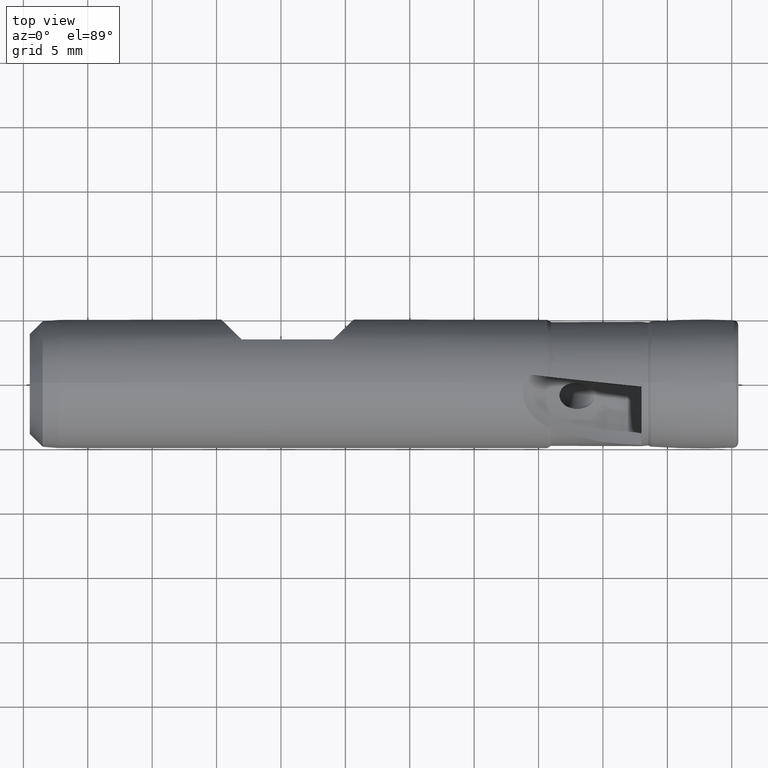
[diagram: clean part render]
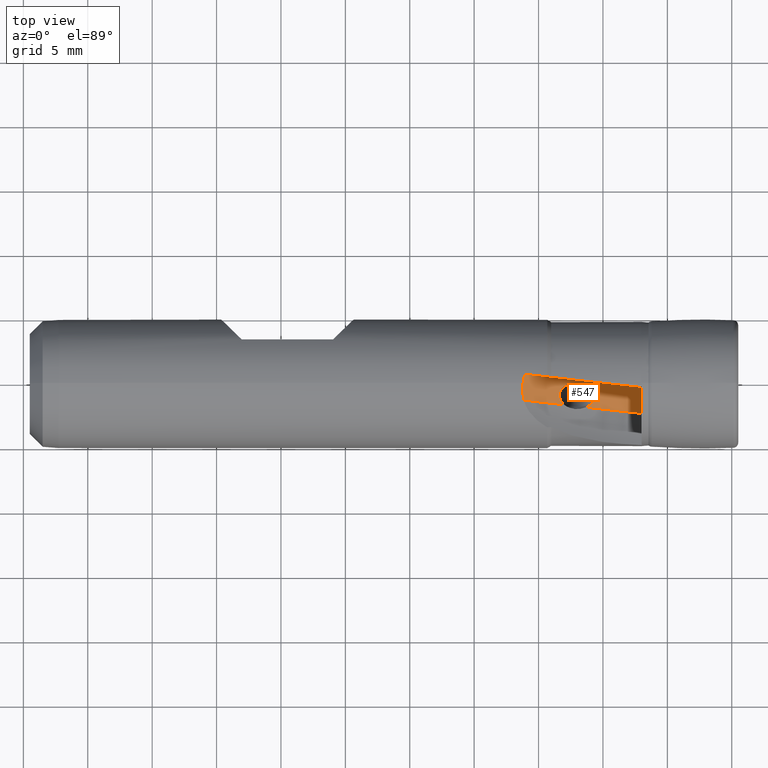
[diagram: same view with one face highlighted and labeled with its STEP entity id]
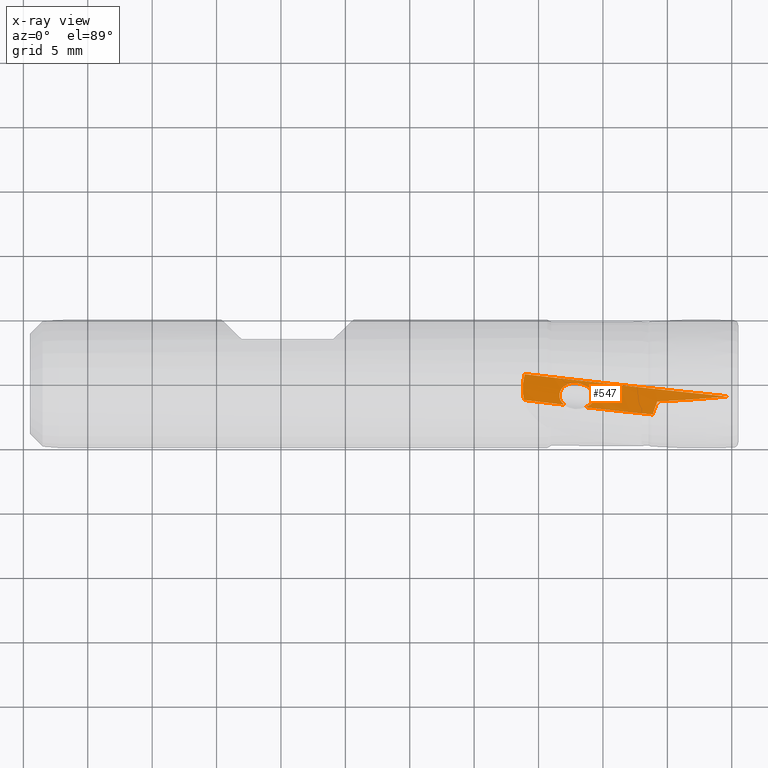
[diagram: x-ray of the same camera — body ghosted, the highlighted face saturated]
A machine part, top view. The second image highlights one B-rep face of the part: STEP entity #547.
The next image is the same camera in x-ray: the body ghosted, the highlighted face saturated — about 0% of this face is hidden behind the body in this view.
In plain terms, the highlighted cylindrical surface (partial cylindrical patch) has radius 20 mm, axis along (-0.1045, -0.9945, -0).
Its self-contained STEP definition (entity closure, byte-faithful):
#36 = EDGE_LOOP ( 'NONE', ( #876, #877, #878, #879, #880, #881, #882, #883, #884, #885, #886 ) ) ;
#76 = CARTESIAN_POINT ( 'NONE',  ( -13.01692695382451800, -1.658445768495479200, 2.649224183411278000 ) ) ;
#77 = CARTESIAN_POINT ( 'NONE',  ( -11.32752142599441600, -1.836009444551878400, 1.801208645231765700 ) ) ;
#113 = VERTEX_POINT ( 'NONE', #76 ) ;
#114 = VERTEX_POINT ( 'NONE', #77 ) ;
#139 = VERTEX_POINT ( 'NONE', #965 ) ;
#140 = VERTEX_POINT ( 'NONE', #966 ) ;
#141 = VERTEX_POINT ( 'NONE', #967 ) ;
#143 = VERTEX_POINT ( 'NONE', #969 ) ;
#163 = VERTEX_POINT ( 'NONE', #989 ) ;
#164 = VERTEX_POINT ( 'NONE', #990 ) ;
#179 = VERTEX_POINT ( 'NONE', #1005 ) ;
#219 = VERTEX_POINT ( 'NONE', #1045 ) ;
#221 = VERTEX_POINT ( 'NONE', #1047 ) ;
#326 = B_SPLINE_CURVE_WITH_KNOTS ( 'NONE', 3,
 ( #1383, #1382, #1390, #1391 ),
 .UNSPECIFIED., .F., .F.,
 ( 4, 4 ),
 ( 0.001346858515786729300, 0.002030196299819931200 ),
 .UNSPECIFIED. ) ;
#351 = EDGE_CURVE ( 'NONE', #163, #164, #326, .T. ) ;
#379 = EDGE_CURVE ( 'NONE', #179, #139, #617, .T. ) ;
#399 = EDGE_CURVE ( 'NONE', #164, #179, #1236, .T. ) ;
#446 = EDGE_CURVE ( 'NONE', #221, #163, #1175, .T. ) ;
#447 = EDGE_CURVE ( 'NONE', #221, #113, #1342, .T. ) ;
#448 = EDGE_CURVE ( 'NONE', #143, #141, #1179, .T. ) ;
#449 = EDGE_CURVE ( 'NONE', #114, #219, #1322, .T. ) ;
#450 = EDGE_CURVE ( 'NONE', #140, #219, #1178, .T. ) ;
#547 = ADVANCED_FACE ( 'NONE', ( #2172 ), #2171, .F. ) ;
#616 = EDGE_CURVE ( 'NONE', #141, #114, #821, .T. ) ;
#617 = B_SPLINE_CURVE_WITH_KNOTS ( 'NONE', 3,
 ( #1487, #1488, #1493, #1494 ),
 .UNSPECIFIED., .F., .F.,
 ( 4, 4 ),
 ( 1.626421921533377400E-005, 2.985576185148802800E-005 ),
 .UNSPECIFIED. ) ;
#653 = AXIS2_PLACEMENT_3D ( 'NONE', #2166, #2168, #2174 ) ;
#769 = EDGE_CURVE ( 'NONE', #113, #143, #820, .T. ) ;
#816 = EDGE_CURVE ( 'NONE', #139, #140, #2221, .T. ) ;
#820 = B_SPLINE_CURVE_WITH_KNOTS ( 'NONE', 3,
 ( #2208, #2228, #2229, #2230, #2231, #2232, #2233, #2234 ),
 .UNSPECIFIED., .F., .F.,
 ( 4, 2, 2, 4 ),
 ( 1.130519435695474000E-015, 0.0002324834957724966100, 0.0004649669915438626800, 0.0009299339830865969100 ),
 .UNSPECIFIED. ) ;
#821 = B_SPLINE_CURVE_WITH_KNOTS ( 'NONE', 3,
 ( #2193, #2199, #2209, #2210, #2211, #2212, #2064, #2227 ),
 .UNSPECIFIED., .F., .F.,
 ( 4, 2, 2, 4 ),
 ( 0.004912241234561748800, 0.005183248772095141000, 0.005454256309628533100, 0.005996271384695313900 ),
 .UNSPECIFIED. ) ;
#876 = ORIENTED_EDGE ( 'NONE', *, *, #816, .F. ) ;
#877 = ORIENTED_EDGE ( 'NONE', *, *, #379, .F. ) ;
#878 = ORIENTED_EDGE ( 'NONE', *, *, #399, .F. ) ;
#879 = ORIENTED_EDGE ( 'NONE', *, *, #351, .F. ) ;
#880 = ORIENTED_EDGE ( 'NONE', *, *, #446, .F. ) ;
#881 = ORIENTED_EDGE ( 'NONE', *, *, #447, .T. ) ;
#882 = ORIENTED_EDGE ( 'NONE', *, *, #769, .T. ) ;
#883 = ORIENTED_EDGE ( 'NONE', *, *, #448, .T. ) ;
#884 = ORIENTED_EDGE ( 'NONE', *, *, #616, .T. ) ;
#885 = ORIENTED_EDGE ( 'NONE', *, *, #449, .T. ) ;
#886 = ORIENTED_EDGE ( 'NONE', *, *, #450, .F. ) ;
#965 = CARTESIAN_POINT ( 'NONE',  ( -0.3966148447414505300, -0.9871925962584100500, 0.2835161799355961400 ) ) ;
#966 = CARTESIAN_POINT ( 'NONE',  ( -5.782774584073986400, -1.368722027778496800, 0.2700083723415540000 ) ) ;
#967 = CARTESIAN_POINT ( 'NONE',  ( -10.66969559083104900, -1.079242117553785000, 1.558104876491971200 ) ) ;
#969 = CARTESIAN_POINT ( 'NONE',  ( -13.37767674998023000, -0.8808519487152274300, 2.903055872603006000 ) ) ;
#989 = CARTESIAN_POINT ( 'NONE',  ( -16.20414531685863200, 7.175098985511016600E-014, 4.999999999999999100 ) ) ;
#990 = CARTESIAN_POINT ( 'NONE',  ( -16.08015100946152400, 0.6745286124466470800, 4.954292194753096000 ) ) ;
#1005 = CARTESIAN_POINT ( 'NONE',  ( -0.3982477896618233400, -0.9737058329805045000, 0.2831017122138755900 ) ) ;
#1045 = CARTESIAN_POINT ( 'NONE',  ( -6.139378685177725000, -2.381305219774267900, 0.3043231616790750800 ) ) ;
#1047 = CARTESIAN_POINT ( 'NONE',  ( -16.13224354872516000, -1.331012800178033500, 4.819585555393968200 ) ) ;
#1175 = B_SPLINE_CURVE_WITH_KNOTS ( 'NONE', 3,
 ( #1749, #1750, #1754, #1755, #1756, #1757 ),
 .UNSPECIFIED., .F., .F.,
 ( 4, 2, 4 ),
 ( 0.0000000000000000000, 0.0006734292578933646700, 0.001346858515786729300 ),
 .UNSPECIFIED. ) ;
#1178 = B_SPLINE_CURVE_WITH_KNOTS ( 'NONE', 3,
 ( #1782, #1783, #1788, #1789 ),
 .UNSPECIFIED., .F., .F.,
 ( 4, 4 ),
 ( 6.055058082918028100E-007, 0.001074695007184198200 ),
 .UNSPECIFIED. ) ;
#1179 = B_SPLINE_CURVE_WITH_KNOTS ( 'NONE', 3,
 ( #1759, #1758, #1764, #1765, #1766, #1767, #1768, #1769, #1770, #1771, #1772, #1773, #1774, #1775, #1776, #1777, #1778, #1779, #1780, #1781 ),
 .UNSPECIFIED., .F., .F.,
 ( 4, 2, 2, 2, 2, 2, 2, 2, 2, 4 ),
 ( 0.0009299339830865969100, 0.001427722389520991000, 0.001925510795955385000, 0.002423299202389778800, 0.002921087608824173100, 0.003418876015258566900, 0.003916664421692961200, 0.004414452828127355900, 0.004663347031344551900, 0.004912241234561749700 ),
 .UNSPECIFIED. ) ;
#1236 = CIRCLE ( 'NONE', #1326, 20.00000000000000000 ) ;
#1258 = AXIS2_PLACEMENT_3D ( 'NONE', #1784, #1785, #1786 ) ;
#1295 = AXIS2_PLACEMENT_3D ( 'NONE', #1760, #1761, #1762 ) ;
#1322 = CIRCLE ( 'NONE', #1258, 20.00000000000000000 ) ;
#1326 = AXIS2_PLACEMENT_3D ( 'NONE', #1559, #1560, #1561 ) ;
#1342 = CIRCLE ( 'NONE', #1295, 20.00000000000000000 ) ;
#1382 = CARTESIAN_POINT ( 'NONE',  ( -16.18015795417792500, 0.2282245108382672000, 4.999999999999993800 ) ) ;
#1383 = CARTESIAN_POINT ( 'NONE',  ( -16.20414531685863200, 7.175098985511016600E-014, 4.999999999999999100 ) ) ;
#1390 = CARTESIAN_POINT ( 'NONE',  ( -16.13859210282028700, 0.4530169619172691500, 4.984451083328591100 ) ) ;
#1391 = CARTESIAN_POINT ( 'NONE',  ( -16.08015100946152400, 0.6745286124466470800, 4.954292194753096000 ) ) ;
#1487 = CARTESIAN_POINT ( 'NONE',  ( -0.3982477896618233400, -0.9737058329805045000, 0.2831017122138755900 ) ) ;
#1488 = CARTESIAN_POINT ( 'NONE',  ( -0.3977037046201949400, -0.9782014519411987900, 0.2832397584899564200 ) ) ;
#1493 = CARTESIAN_POINT ( 'NONE',  ( -0.3971593867047172900, -0.9826970393477683100, 0.2833779147554244000 ) ) ;
#1494 = CARTESIAN_POINT ( 'NONE',  ( -0.3966148447414505300, -0.9871925962584100500, 0.2835161799355961400 ) ) ;
#1559 = CARTESIAN_POINT ( 'NONE',  ( -3.089139434005141000, -0.6908817245191762900, 20.09923434908519000 ) ) ;
#1560 = DIRECTION ( 'NONE',  ( -0.1045284632676401500, -0.9945218953682748400, -6.944709277498469300E-015 ) ) ;
#1561 = DIRECTION ( 'NONE',  ( -0.9945218953682747300, 0.1045284632676401600, 6.938893903907228400E-016 ) ) ;
#1749 = CARTESIAN_POINT ( 'NONE',  ( -16.13224354872516000, -1.331012800178033500, 4.819585555393968200 ) ) ;
#1750 = CARTESIAN_POINT ( 'NONE',  ( -16.18025757576846500, -1.116366019146429300, 4.878864016121847900 ) ) ;
#1754 = CARTESIAN_POINT ( 'NONE',  ( -16.20990254017045000, -0.8979177473825068500, 4.923825272863483700 ) ) ;
#1755 = CARTESIAN_POINT ( 'NONE',  ( -16.23385971963920200, -0.4534277419826008800, 4.984447299506152600 ) ) ;
#1756 = CARTESIAN_POINT ( 'NONE',  ( -16.22778485827739200, -0.2249152125903278700, 4.999999999999997300 ) ) ;
#1757 = CARTESIAN_POINT ( 'NONE',  ( -16.20414531685863200, 7.175098985511016600E-014, 4.999999999999999100 ) ) ;
#1758 = CARTESIAN_POINT ( 'NONE',  ( -13.36555221987259400, -0.7131599704201019300, 2.906304630653956600 ) ) ;
#1759 = CARTESIAN_POINT ( 'NONE',  ( -13.37767674998023000, -0.8808519487152274300, 2.903055872603006000 ) ) ;
#1760 = CARTESIAN_POINT ( 'NONE',  ( -3.298196360540421400, -2.679925515255728200, 20.09923434908517600 ) ) ;
#1761 = DIRECTION ( 'NONE',  ( -0.1045284632676401500, -0.9945218953682748400, -6.944709277498469300E-015 ) ) ;
#1762 = DIRECTION ( 'NONE',  ( -0.9945218953682747300, 0.1045284632676401600, 6.938893903907228400E-016 ) ) ;
#1764 = CARTESIAN_POINT ( 'NONE',  ( -13.30104931599006200, -0.5540705370757563800, 2.877887678740374400 ) ) ;
#1765 = CARTESIAN_POINT ( 'NONE',  ( -13.10787057743040800, -0.2960524623718701600, 2.781418337888343000 ) ) ;
#1766 = CARTESIAN_POINT ( 'NONE',  ( -12.98408544629406300, -0.1989589756079126500, 2.716321155892324100 ) ) ;
#1767 = CARTESIAN_POINT ( 'NONE',  ( -12.71798323518927800, -0.05825920774347960500, 2.576447955030850300 ) ) ;
#1768 = CARTESIAN_POINT ( 'NONE',  ( -12.57399928410604100, -0.01382694347442033800, 2.500762017316631600 ) ) ;
#1769 = CARTESIAN_POINT ( 'NONE',  ( -12.28244193940717300, 0.03296850687215123500, 2.349773417001440800 ) ) ;
#1770 = CARTESIAN_POINT ( 'NONE',  ( -12.13543703034501700, 0.03574123504538658000, 2.274701774295331700 ) ) ;
#1771 = CARTESIAN_POINT ( 'NONE',  ( -11.83889173869919600, 0.005501750334464202600, 2.126090041096840600 ) ) ;
#1772 = CARTESIAN_POINT ( 'NONE',  ( -11.69238914269983500, -0.02745537908619788800, 2.054085499542136300 ) ) ;
#1773 = CARTESIAN_POINT ( 'NONE',  ( -11.40879415023883300, -0.1277467500632048800, 1.917151101635205000 ) ) ;
#1774 = CARTESIAN_POINT ( 'NONE',  ( -11.26929737487066600, -0.1961321098696589500, 1.851110304647377400 ) ) ;
#1775 = CARTESIAN_POINT ( 'NONE',  ( -11.01464174131603500, -0.3716106062201455800, 1.731667130459035900 ) ) ;
#1776 = CARTESIAN_POINT ( 'NONE',  ( -10.89601135280860900, -0.4804429518755171700, 1.676719756085513400 ) ) ;
#1777 = CARTESIAN_POINT ( 'NONE',  ( -10.76189168978052800, -0.6813170479578347600, 1.612483469302913800 ) ) ;
#1778 = CARTESIAN_POINT ( 'NONE',  ( -10.72457959931706700, -0.7552175460785309800, 1.594089941291968200 ) ) ;
#1779 = CARTESIAN_POINT ( 'NONE',  ( -10.67575087705782100, -0.9123508400348638900, 1.567579502618784900 ) ) ;
#1780 = CARTESIAN_POINT ( 'NONE',  ( -10.66446774400349200, -0.9963660003960355100, 1.559505673831249600 ) ) ;
#1781 = CARTESIAN_POINT ( 'NONE',  ( -10.66969559083104900, -1.079242117553785000, 1.558104876491971200 ) ) ;
#1782 = CARTESIAN_POINT ( 'NONE',  ( -5.782774584073986400, -1.368722027778496800, 0.2700083723415540000 ) ) ;
#1783 = CARTESIAN_POINT ( 'NONE',  ( -5.901032729472073700, -1.706484135733777000, 0.2808334240126214000 ) ) ;
#1784 = CARTESIAN_POINT ( 'NONE',  ( -3.298196360540421400, -2.679925515255728200, 20.09923434908517600 ) ) ;
#1785 = DIRECTION ( 'NONE',  ( -0.1045284632676401500, -0.9945218953682748400, -6.944709277498469300E-015 ) ) ;
#1786 = DIRECTION ( 'NONE',  ( -0.9945218953682747300, 0.1045284632676401600, 6.938893903907228400E-016 ) ) ;
#1788 = CARTESIAN_POINT ( 'NONE',  ( -6.020157954528178500, -2.043922208475743100, 0.2923009598174891000 ) ) ;
#1789 = CARTESIAN_POINT ( 'NONE',  ( -6.139378685177725000, -2.381305219774267900, 0.3043231616790750800 ) ) ;
#2064 = CARTESIAN_POINT ( 'NONE',  ( -11.17063133920745700, -1.770373205699988400, 1.735391160380473900 ) ) ;
#2166 = CARTESIAN_POINT ( 'NONE',  ( -4.167743348634897600, -10.95311247005918900, 20.09923434908511600 ) ) ;
#2168 = DIRECTION ( 'NONE',  ( -0.1045284632676401500, -0.9945218953682748400, -6.944709277498469300E-015 ) ) ;
#2171 = CYLINDRICAL_SURFACE ( 'NONE', #653, 20.00000000000000000 ) ;
#2172 = FACE_OUTER_BOUND ( 'NONE', #36, .T. ) ;
#2174 = DIRECTION ( 'NONE',  ( -0.9945218953682747300, 0.1045284632676401300, 6.938893903907228400E-016 ) ) ;
#2193 = CARTESIAN_POINT ( 'NONE',  ( -10.66969559083104900, -1.079242117553785000, 1.558104876491971200 ) ) ;
#2199 = CARTESIAN_POINT ( 'NONE',  ( -10.67538791262840400, -1.169481472834216900, 1.556579623466719300 ) ) ;
#2208 = CARTESIAN_POINT ( 'NONE',  ( -13.01692695382451800, -1.658445768495479200, 2.649224183411278000 ) ) ;
#2209 = CARTESIAN_POINT ( 'NONE',  ( -10.70077660781677400, -1.258915847036610200, 1.562982787204815200 ) ) ;
#2210 = CARTESIAN_POINT ( 'NONE',  ( -10.78222572287590700, -1.421270558360104000, 1.589056463522957600 ) ) ;
#2211 = CARTESIAN_POINT ( 'NONE',  ( -10.83579270914198200, -1.491973497332259100, 1.607834866047116000 ) ) ;
#2212 = CARTESIAN_POINT ( 'NONE',  ( -11.02193693392375600, -1.681450601779785400, 1.676542041927483000 ) ) ;
#2221 = B_SPLINE_CURVE_WITH_KNOTS ( 'NONE', 3,
 ( #2280, #2281, #2286, #2287, #2288, #2289, #2290, #2291 ),
 .UNSPECIFIED., .F., .F.,
 ( 4, 2, 2, 4 ),
 ( 0.0002544620643162287800, 0.001609840735224221100, 0.002965219406132213600, 0.005675976747948199100 ),
 .UNSPECIFIED. ) ;
#2227 = CARTESIAN_POINT ( 'NONE',  ( -11.32752142599441600, -1.836009444551878400, 1.801208645231765700 ) ) ;
#2228 = CARTESIAN_POINT ( 'NONE',  ( -13.07187926333947700, -1.613542999161049500, 2.682458201936038600 ) ) ;
#2229 = CARTESIAN_POINT ( 'NONE',  ( -13.12254137513788200, -1.563847102841635900, 2.713982188439016100 ) ) ;
#2230 = CARTESIAN_POINT ( 'NONE',  ( -13.21389102855199800, -1.453074493484066900, 2.772634886066137800 ) ) ;
#2231 = CARTESIAN_POINT ( 'NONE',  ( -13.25497920591518400, -1.391112778253077400, 2.800054138372737500 ) ) ;
#2232 = CARTESIAN_POINT ( 'NONE',  ( -13.35415576894379300, -1.191904380066890300, 2.869730945099273600 ) ) ;
#2233 = CARTESIAN_POINT ( 'NONE',  ( -13.38900185561778300, -1.037487245250625000, 2.900021319693229000 ) ) ;
#2234 = CARTESIAN_POINT ( 'NONE',  ( -13.37767674998023000, -0.8808519487152274300, 2.903055872603006000 ) ) ;
#2280 = CARTESIAN_POINT ( 'NONE',  ( -0.3966148447414505300, -0.9871925962584100500, 0.2835161799355961400 ) ) ;
#2281 = CARTESIAN_POINT ( 'NONE',  ( -0.8420700595801484700, -1.036049653660615200, 0.2236555049307325000 ) ) ;
#2286 = CARTESIAN_POINT ( 'NONE',  ( -1.289965187034275000, -1.074034312370653900, 0.1781132737091503700 ) ) ;
#2287 = CARTESIAN_POINT ( 'NONE',  ( -2.189254837107019700, -1.144199666057790400, 0.1165005451403788900 ) ) ;
#2288 = CARTESIAN_POINT ( 'NONE',  ( -2.640047185422521400, -1.176098166599113000, 0.1004899949846570900 ) ) ;
#2289 = CARTESIAN_POINT ( 'NONE',  ( -3.989123156407248200, -1.268875721254267400, 0.09693656520419151300 ) ) ;
#2290 = CARTESIAN_POINT ( 'NONE',  ( -4.886407301197804600, -1.329321431031319100, 0.1533017889823664300 ) ) ;
#2291 = CARTESIAN_POINT ( 'NONE',  ( -5.782774584073986400, -1.368722027778496800, 0.2700083723415540000 ) ) ;